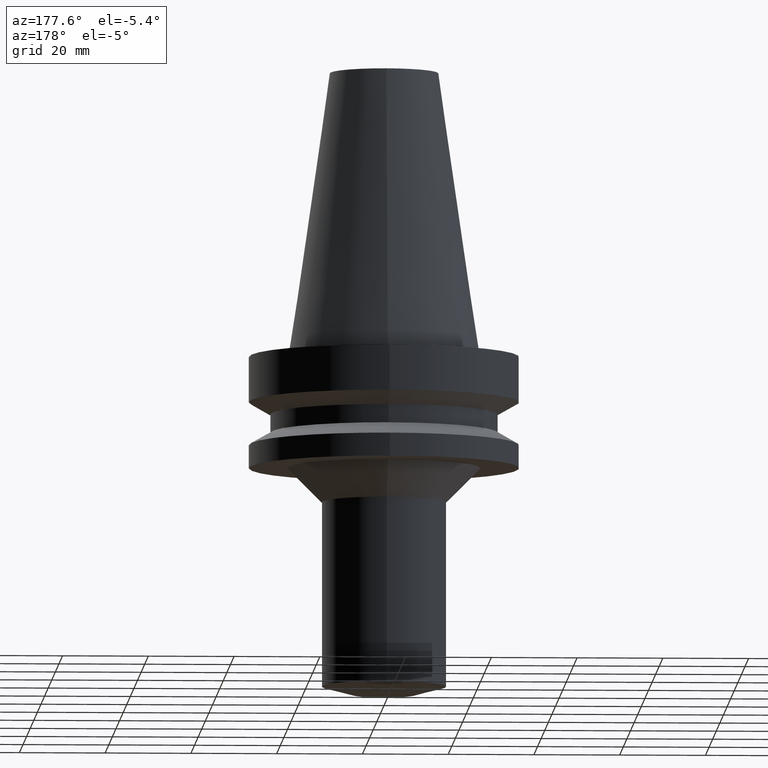
[diagram: clean part render]
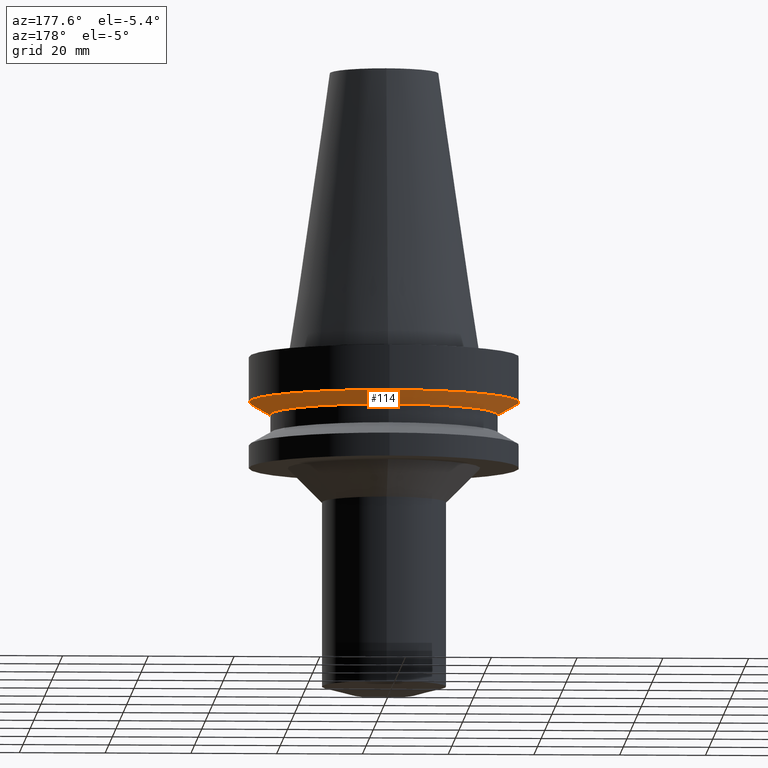
[diagram: same view with one face highlighted and labeled with its STEP entity id]
A machine part, auxiliary view. The second image highlights one B-rep face of the part: STEP entity #114.
In plain terms, the highlighted conical surface has half-angle 60 deg.
Its self-contained STEP definition (entity closure, byte-faithful):
#69=EDGE_CURVE('Unnamed[1]',#166,#166,#167,.T.);
#114=ADVANCED_FACE('Unnamed[1]',(#235,#236),#237,.T.);
#121=EDGE_CURVE('Unnamed[1]',#246,#246,#247,.T.);
#166=VERTEX_POINT('',#289);
#167=CIRCLE('',#290,26.4999999999994);
#235=FACE_BOUND('',#375,.T.);
#236=FACE_BOUND('',#376,.T.);
#237=CONICAL_SURFACE('',#377,28.9999999999999,1.04719755119657);
#246=VERTEX_POINT('',#389);
#247=CIRCLE('',#390,31.5000000000004);
#289=CARTESIAN_POINT('',(8.8494551369045E-016,26.4999999999995,-14.4522569986152));
#290=AXIS2_PLACEMENT_3D('',#424,#425,#426);
#375=EDGE_LOOP('',(#498));
#376=EDGE_LOOP('',(#499));
#377=AXIS2_PLACEMENT_3D('',#500,#501,#502);
#389=CARTESIAN_POINT('',(7.08182973902923E-016,31.5000000000004,-11.5655056526664));
#390=AXIS2_PLACEMENT_3D('',#511,#512,#513);
#424=CARTESIAN_POINT('',(8.8494551369045E-016,2.49338301549761E-014,-14.4522569986152));
#425=DIRECTION('',(6.12323399573676E-017,-6.46048942079378E-016,-1.0));
#426=DIRECTION('',(3.47319357197332E-032,1.0,-6.46048942079378E-016));
#498=ORIENTED_EDGE('',*,*,#69,.F.);
#499=ORIENTED_EDGE('',*,*,#121,.T.);
#500=CARTESIAN_POINT('',(7.96564243796686E-016,2.58663214815243E-014,-13.0088813256407));
#501=DIRECTION('',(-6.12323399573677E-017,6.46048942079378E-016,1.0));
#502=DIRECTION('',(3.47319357197332E-032,1.0,-6.46048942079378E-016));
#511=CARTESIAN_POINT('',(7.08182973902922E-016,2.67988128080726E-014,-11.5655056526663));
#512=DIRECTION('',(6.12323399573677E-017,-6.46048942079378E-016,-1.0));
#513=DIRECTION('',(3.47319357197332E-032,1.0,-6.46048942079378E-016));